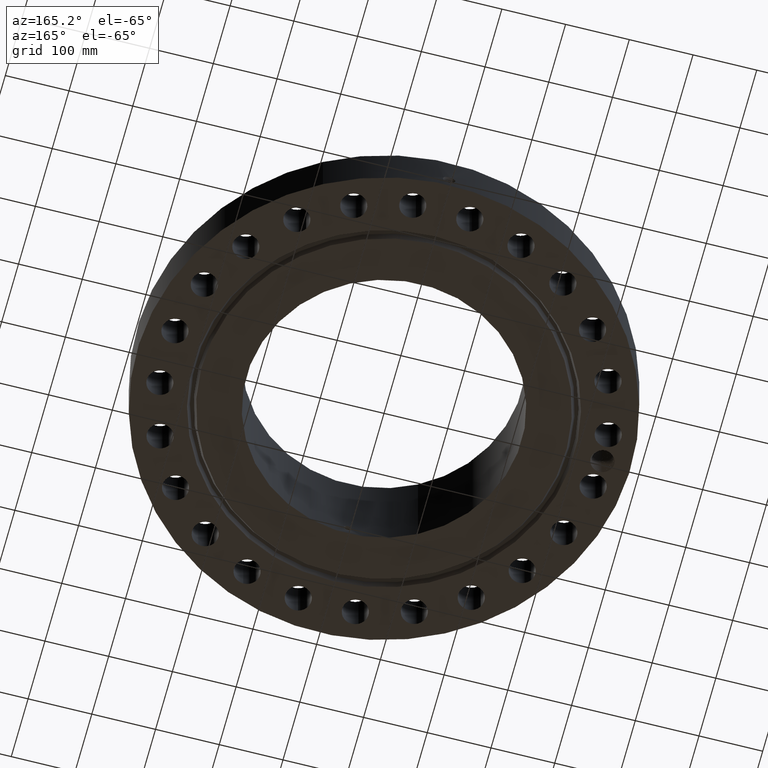
[diagram: clean part render]
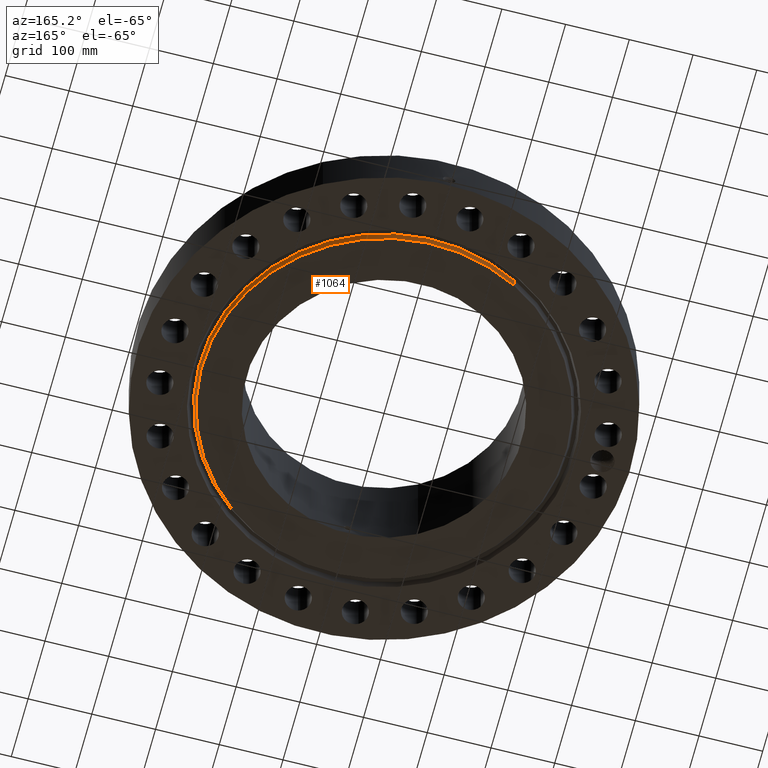
[diagram: same view with one face highlighted and labeled with its STEP entity id]
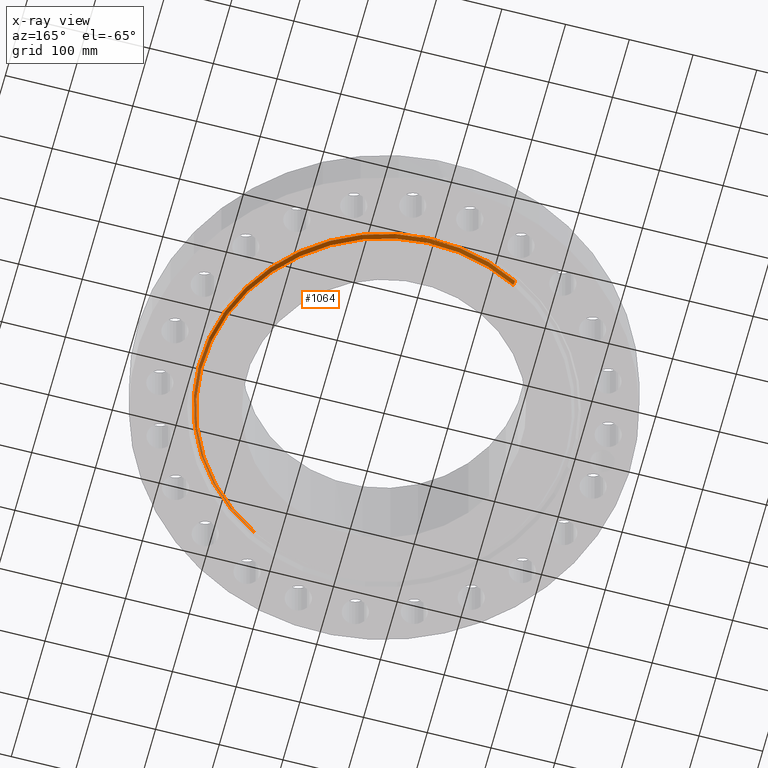
[diagram: x-ray of the same camera — body ghosted, the highlighted face saturated]
A machine part, auxiliary view. The second image highlights one B-rep face of the part: STEP entity #1064.
The next image is the same camera in x-ray: the body ghosted, the highlighted face saturated — about 0% of this face is hidden behind the body in this view.
In plain terms, the highlighted conical surface has half-angle 23 deg.
Its self-contained STEP definition (entity closure, byte-faithful):
#602=AXIS2_PLACEMENT_3D('Circle Axis2P3D',#600,#601,$) ;
#1037=AXIS2_PLACEMENT_3D('Cone Axis2P3D',#1034,#1035,#1036) ;
#1048=AXIS2_PLACEMENT_3D('Circle Axis2P3D',#1046,#1047,$) ;
#600=CARTESIAN_POINT('Axis2P3D Location',(1.1189649382E-015,-1.1189649382E-015,0.)) ;
#604=CARTESIAN_POINT('Vertex',(-5.38610621347,9.8592012916,3.40934629609E-016)) ;
#606=CARTESIAN_POINT('Vertex',(5.38610621347,-9.8592012916,0.)) ;
#1034=CARTESIAN_POINT('Axis2P3D Location',(0.,0.,-0.0600000000002)) ;
#1039=CARTESIAN_POINT('Line Origine',(-5.4205435653,9.92223844129,0.169221933855)) ;
#1043=CARTESIAN_POINT('Vertex',(-5.45498091713,9.98527559098,0.338443867711)) ;
#1046=CARTESIAN_POINT('Axis2P3D Location',(0.,0.,0.338443867711)) ;
#1050=CARTESIAN_POINT('Vertex',(5.45498091713,-9.98527559098,0.338443867711)) ;
#1053=CARTESIAN_POINT('Line Origine',(5.4205435653,-9.92223844129,0.169221933855)) ;
#601=DIRECTION('Axis2P3D Direction',(0.,0.,-0.0393700787402)) ;
#1035=DIRECTION('Axis2P3D Direction',(0.,0.,0.0393700787402)) ;
#1036=DIRECTION('Axis2P3D XDirection',(-0.0188750212049,0.0345504945626,0.)) ;
#1040=DIRECTION('Vector Direction',(-0.00737505833565,0.0134999537303,0.0362403485611)) ;
#1047=DIRECTION('Axis2P3D Direction',(0.,0.,0.0393700787402)) ;
#1054=DIRECTION('Vector Direction',(0.00737505833565,-0.0134999537303,0.0362403485611)) ;
#1041=VECTOR('Line Direction',#1040,0.0393700787402) ;
#1055=VECTOR('Line Direction',#1054,0.0393700787402) ;
#1059=ORIENTED_EDGE('',*,*,#1045,.F.) ;
#1060=ORIENTED_EDGE('',*,*,#1052,.F.) ;
#1061=ORIENTED_EDGE('',*,*,#1057,.T.) ;
#1062=ORIENTED_EDGE('',*,*,#608,.F.) ;
#1064=ADVANCED_FACE('PartBody',(#1063),#1038,.T.) ;
#603=CIRCLE('generated circle',#602,11.2345) ;
#1049=CIRCLE('generated circle',#1048,11.3781608986) ;
#1038=CONICAL_SURFACE('Cone',#1037,11.2090315111,0.401425727959) ;
#608=EDGE_CURVE('',#605,#607,#603,.T.) ;
#1045=EDGE_CURVE('',#1044,#605,#1042,.F.) ;
#1052=EDGE_CURVE('',#1051,#1044,#1049,.T.) ;
#1057=EDGE_CURVE('',#1051,#607,#1056,.F.) ;
#1058=EDGE_LOOP('',(#1059,#1060,#1061,#1062)) ;
#1063=FACE_OUTER_BOUND('',#1058,.T.) ;
#1042=LINE('Line',#1039,#1041) ;
#1056=LINE('Line',#1053,#1055) ;
#605=VERTEX_POINT('',#604) ;
#607=VERTEX_POINT('',#606) ;
#1044=VERTEX_POINT('',#1043) ;
#1051=VERTEX_POINT('',#1050) ;